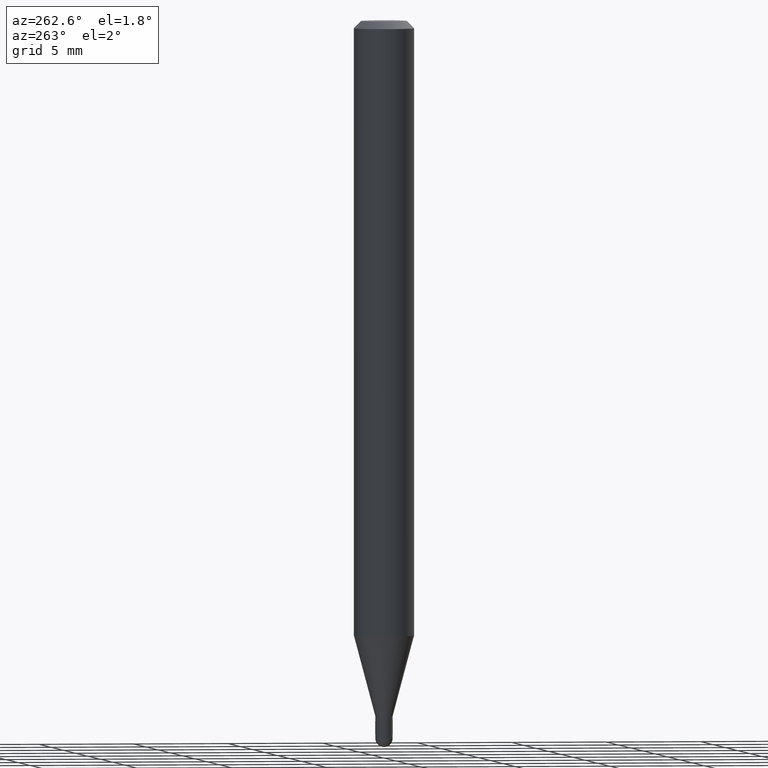
[diagram: clean part render]
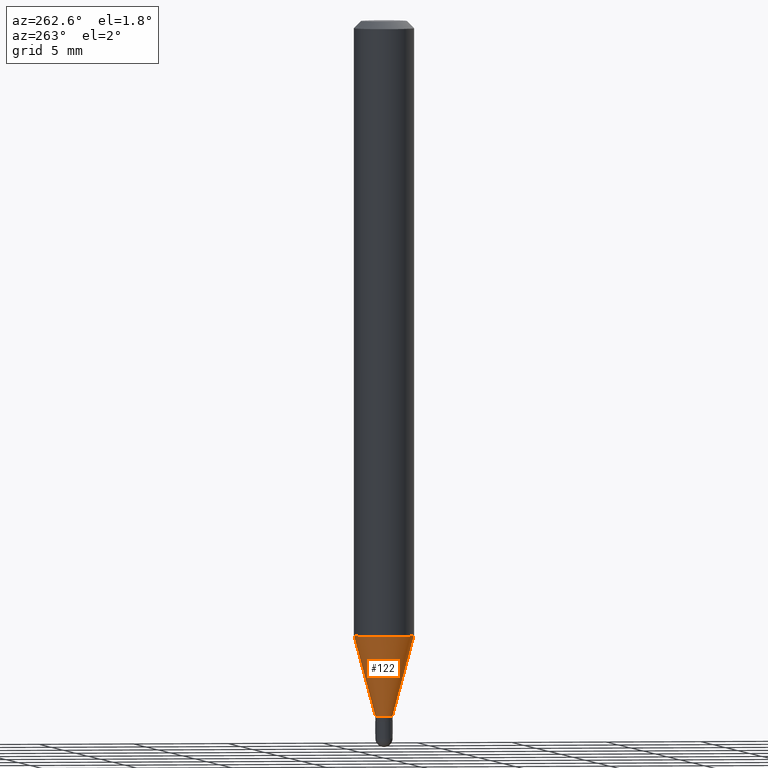
[diagram: same view with one face highlighted and labeled with its STEP entity id]
A machine part, auxiliary view. The second image highlights one B-rep face of the part: STEP entity #122.
In plain terms, the highlighted conical surface has half-angle 15 deg.
Its self-contained STEP definition (entity closure, byte-faithful):
#7 = CONICAL_SURFACE ( 'NONE', #15, 0.01799999999999992231, 0.2617993877991506846 ) ;
#15 = AXIS2_PLACEMENT_3D ( 'NONE', #64, #263, #225 ) ;
#21 = AXIS2_PLACEMENT_3D ( 'NONE', #474, #358, #278 ) ;
#44 = VERTEX_POINT ( 'NONE', #283 ) ;
#64 = CARTESIAN_POINT ( 'NONE',  ( 3.511709963457139332E-29, -5.013743204490759827E-15, -1.436000000000000165 ) ) ;
#73 = FACE_OUTER_BOUND ( 'NONE', #428, .T. ) ;
#74 = EDGE_CURVE ( 'NONE', #373, #305, #248, .T. ) ;
#77 = DIRECTION ( 'NONE',  ( -6.982962677686265133E-15, -1.000000000000000000, 0.000000000000000000 ) ) ;
#122 = ADVANCED_FACE ( 'NONE', ( #73 ), #7, .T. ) ;
#129 = DIRECTION ( 'NONE',  ( -1.807323732225332900E-15, -0.2588190451025185745, 0.9659258262890689783 ) ) ;
#178 = ORIENTED_EDGE ( 'NONE', *, *, #420, .T. ) ;
#207 = LINE ( 'NONE', #362, #444 ) ;
#224 = ORIENTED_EDGE ( 'NONE', *, *, #502, .F. ) ;
#225 = DIRECTION ( 'NONE',  ( -6.982962677686265133E-15, -1.000000000000000000, 0.000000000000000000 ) ) ;
#241 = CARTESIAN_POINT ( 'NONE',  ( -4.364351673553606573E-16, -0.06250000000000444089, -1.269923739063185453 ) ) ;
#243 = CIRCLE ( 'NONE', #371, 0.01799999999999992231 ) ;
#248 = LINE ( 'NONE', #294, #321 ) ;
#263 = DIRECTION ( 'NONE',  ( -2.445480475945082204E-29, 3.491464627082701746E-15, 1.000000000000000000 ) ) ;
#273 = ORIENTED_EDGE ( 'NONE', *, *, #483, .T. ) ;
#278 = DIRECTION ( 'NONE',  ( -6.982962677686265922E-15, -1.000000000000000000, 4.370956789862821150E-15 ) ) ;
#283 = CARTESIAN_POINT ( 'NONE',  ( -1.256933281983171216E-16, -0.01800000000000493566, -1.436000000000000165 ) ) ;
#291 = DIRECTION ( 'NONE',  ( 1.839019923739603076E-15, 0.2588190451025253469, 0.9659258262890670910 ) ) ;
#294 = CARTESIAN_POINT ( 'NONE',  ( 1.278976924368525858E-16, 0.01799999999999490896, -1.436000000000000165 ) ) ;
#305 = VERTEX_POINT ( 'NONE', #382 ) ;
#321 = VECTOR ( 'NONE', #291, 39.37007874015748143 ) ;
#340 = CIRCLE ( 'NONE', #21, 0.06250000000000000000 ) ;
#347 = CARTESIAN_POINT ( 'NONE',  ( 3.511709963457139332E-29, -5.013743204490759827E-15, -1.436000000000000165 ) ) ;
#358 = DIRECTION ( 'NONE',  ( -2.445480475945082204E-29, 3.491464627082701746E-15, 1.000000000000000000 ) ) ;
#362 = CARTESIAN_POINT ( 'NONE',  ( -1.256933281983171216E-16, -0.01800000000000493566, -1.436000000000000165 ) ) ;
#370 = CARTESIAN_POINT ( 'NONE',  ( 2.859934511434732179E-16, 0.01799999999999490896, -1.436000000000000165 ) ) ;
#371 = AXIS2_PLACEMENT_3D ( 'NONE', #347, #507, #77 ) ;
#373 = VERTEX_POINT ( 'NONE', #370 ) ;
#382 = CARTESIAN_POINT ( 'NONE',  ( 4.440892098500933817E-16, 0.06249999999999555217, -1.269923739063185897 ) ) ;
#387 = ORIENTED_EDGE ( 'NONE', *, *, #74, .F. ) ;
#420 = EDGE_CURVE ( 'NONE', #373, #44, #243, .T. ) ;
#428 = EDGE_LOOP ( 'NONE', ( #387, #178, #273, #224 ) ) ;
#433 = VERTEX_POINT ( 'NONE', #241 ) ;
#444 = VECTOR ( 'NONE', #129, 39.37007874015748143 ) ;
#474 = CARTESIAN_POINT ( 'NONE',  ( 3.105573709818197943E-29, -4.433893814031715891E-15, -1.269923739063185675 ) ) ;
#483 = EDGE_CURVE ( 'NONE', #44, #433, #207, .T. ) ;
#502 = EDGE_CURVE ( 'NONE', #305, #433, #340, .T. ) ;
#507 = DIRECTION ( 'NONE',  ( -2.445480475945082204E-29, 3.491464627082701746E-15, 1.000000000000000000 ) ) ;